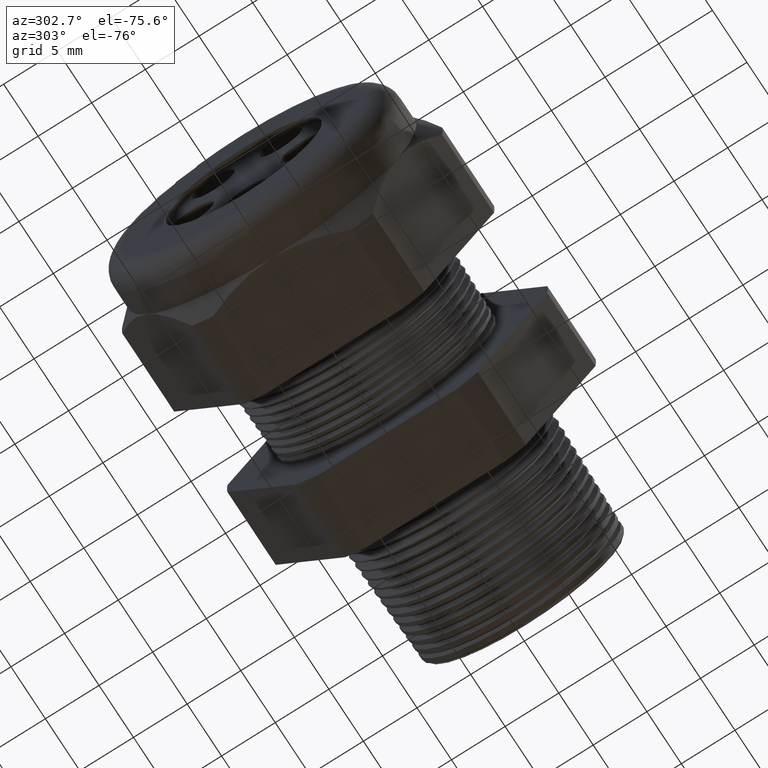
[diagram: clean part render]
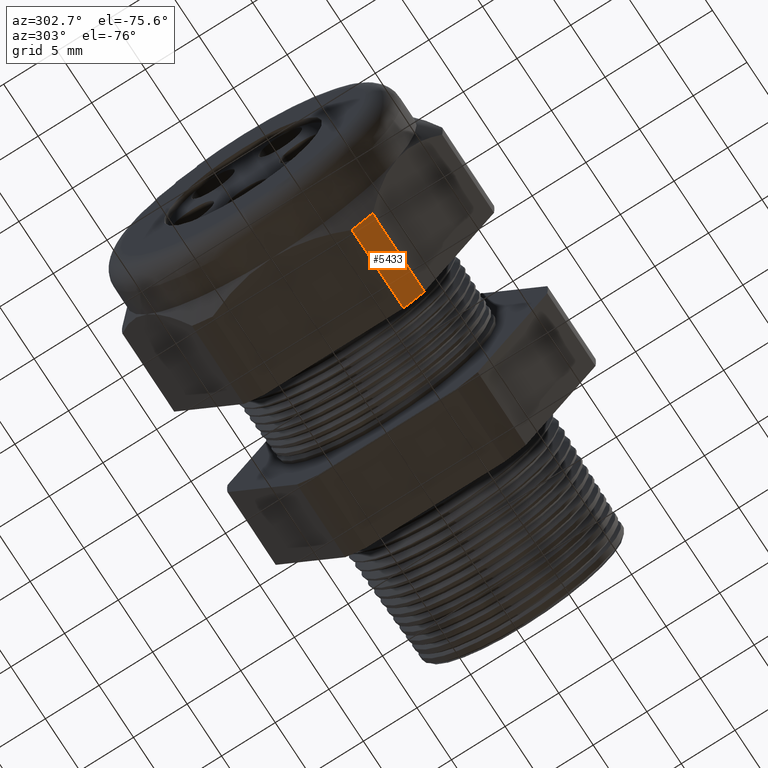
[diagram: same view with one face highlighted and labeled with its STEP entity id]
A machine part, auxiliary view. The second image highlights one B-rep face of the part: STEP entity #5433.
In plain terms, the highlighted cylindrical surface (partial cylindrical patch) has radius 14.9428 mm, axis along (-1, 0, 0).
Its self-contained STEP definition (entity closure, byte-faithful):
#4251 = DIRECTION ( 'NONE',  ( 0.0000000000000000000, 0.0000000000000000000, -1.000000000000000000 ) ) ;
#4252 = DIRECTION ( 'NONE',  ( 1.000000000000000000, 0.0000000000000000000, 0.0000000000000000000 ) ) ;
#4253 = CARTESIAN_POINT ( 'NONE',  ( -0.8903149606299211000, 0.0000000000000000000, 0.0000000000000000000 ) ) ;
#4254 = AXIS2_PLACEMENT_3D ( 'NONE', #4253, #4252, #4251 ) ;
#4255 = CIRCLE ( 'NONE', #4254, 0.5883000000000000500 ) ;
#4256 = DIRECTION ( 'NONE',  ( 0.0000000000000000000, 0.0000000000000000000, -1.000000000000000000 ) ) ;
#4257 = DIRECTION ( 'NONE',  ( 1.000000000000000000, 0.0000000000000000000, 0.0000000000000000000 ) ) ;
#4258 = CARTESIAN_POINT ( 'NONE',  ( -1.186345669291338600, 0.0000000000000000000, 0.0000000000000000000 ) ) ;
#4259 = AXIS2_PLACEMENT_3D ( 'NONE', #4258, #4257, #4256 ) ;
#4260 = CIRCLE ( 'NONE', #4259, 0.5883000000000000500 ) ;
#4261 = CARTESIAN_POINT ( 'NONE',  ( -1.186345669291338600, -0.3313250556190259800, -0.4861281698472632000 ) ) ;
#4262 = CARTESIAN_POINT ( 'NONE',  ( -0.8903149606299207700, -0.3313250556190258700, -0.4861281698472630400 ) ) ;
#4263 = DIRECTION ( 'NONE',  ( -1.000000000000000000, 0.0000000000000000000, 0.0000000000000000000 ) ) ;
#4264 = VECTOR ( 'NONE', #4263, 39.37007874015748100 ) ;
#4265 = CARTESIAN_POINT ( 'NONE',  ( 0.2000000000000000400, -0.3313250556190258700, -0.4861281698472630400 ) ) ;
#4266 = LINE ( 'NONE', #4265, #4264 ) ;
#4287 = CARTESIAN_POINT ( 'NONE',  ( -1.186345669291338600, -0.2553368167734530500, -0.5300000000000001400 ) ) ;
#4288 = CARTESIAN_POINT ( 'NONE',  ( -0.8903149606299207700, -0.2553368167734531000, -0.5300000000000001400 ) ) ;
#4289 = DIRECTION ( 'NONE',  ( -1.000000000000000000, 0.0000000000000000000, 0.0000000000000000000 ) ) ;
#4290 = VECTOR ( 'NONE', #4289, 39.37007874015748100 ) ;
#4291 = CARTESIAN_POINT ( 'NONE',  ( 0.2000000000000000400, -0.2553368167734531000, -0.5300000000000001400 ) ) ;
#4292 = LINE ( 'NONE', #4291, #4290 ) ;
#4320 = DIRECTION ( 'NONE',  ( 0.0000000000000000000, 0.0000000000000000000, 1.000000000000000000 ) ) ;
#4321 = DIRECTION ( 'NONE',  ( -1.000000000000000000, 0.0000000000000000000, 0.0000000000000000000 ) ) ;
#4322 = CARTESIAN_POINT ( 'NONE',  ( 0.2000000000000000400, 0.0000000000000000000, 0.0000000000000000000 ) ) ;
#4323 = AXIS2_PLACEMENT_3D ( 'NONE', #4322, #4321, #4320 ) ;
#4324 = CYLINDRICAL_SURFACE ( 'NONE', #4323, 0.5883000000000000500 ) ;
#4325 = FACE_OUTER_BOUND ( 'NONE', #5434, .T. ) ;
#5406 = ORIENTED_EDGE ( 'NONE', *, *, #5407, .T. ) ;
#5407 = EDGE_CURVE ( 'NONE', #5408, #5409, #4266, .T. ) ;
#5408 = VERTEX_POINT ( 'NONE', #4262 ) ;
#5409 = VERTEX_POINT ( 'NONE', #4261 ) ;
#5410 = ORIENTED_EDGE ( 'NONE', *, *, #5411, .T. ) ;
#5411 = EDGE_CURVE ( 'NONE', #5409, #5425, #4260, .T. ) ;
#5412 = ORIENTED_EDGE ( 'NONE', *, *, #5423, .F. ) ;
#5413 = ORIENTED_EDGE ( 'NONE', *, *, #5414, .F. ) ;
#5414 = EDGE_CURVE ( 'NONE', #5408, #5424, #4255, .T. ) ;
#5423 = EDGE_CURVE ( 'NONE', #5424, #5425, #4292, .T. ) ;
#5424 = VERTEX_POINT ( 'NONE', #4288 ) ;
#5425 = VERTEX_POINT ( 'NONE', #4287 ) ;
#5433 = ADVANCED_FACE ( 'NONE', ( #4325 ), #4324, .T. ) ;
#5434 = EDGE_LOOP ( 'NONE', ( #5406, #5410, #5412, #5413 ) ) ;